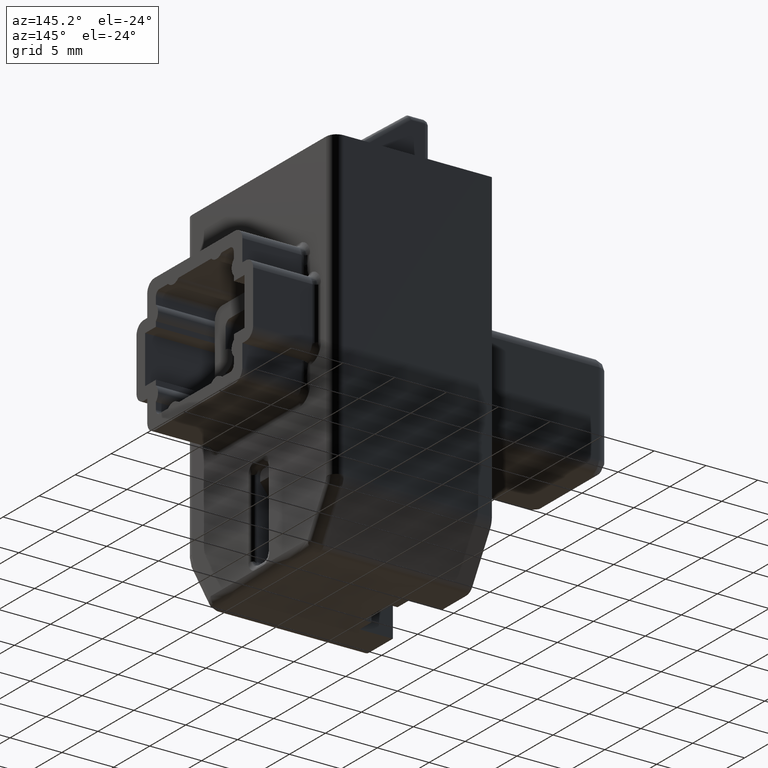
[diagram: clean part render]
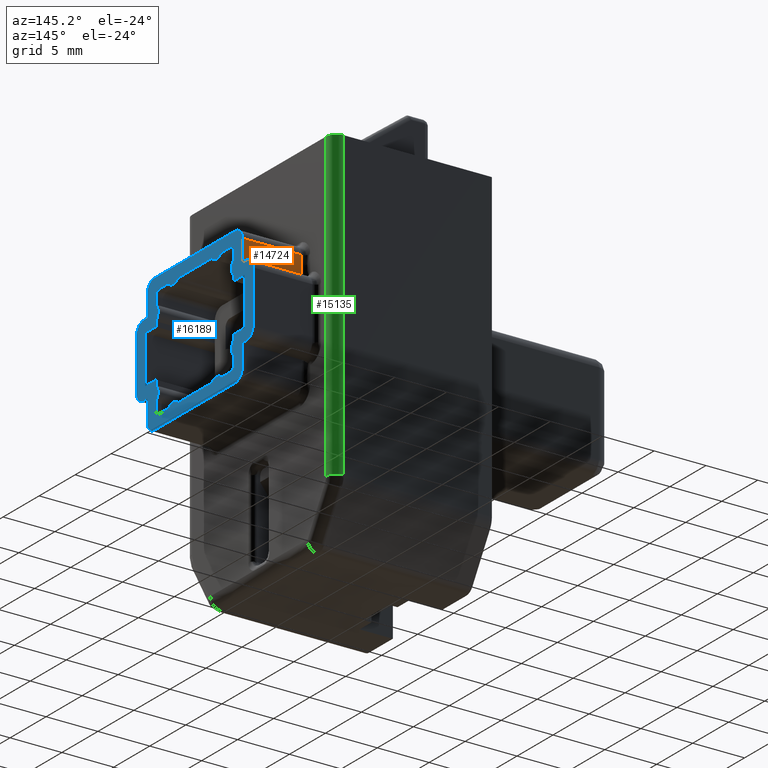
[diagram: same view with three faces highlighted in distinct colors, each labeled with its STEP entity id]
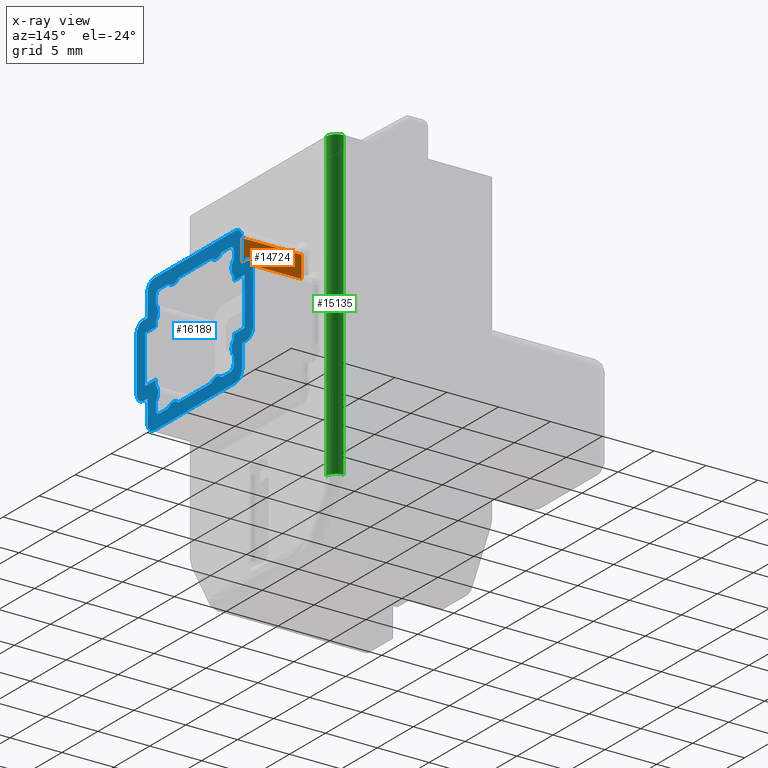
[diagram: x-ray of the same camera — body ghosted, the three highlighted faces saturated]
A machine part, auxiliary view with three faces highlighted in distinct colors.
The next image is the same camera in x-ray (body ghosted, the three faces saturated) — at least one of them is partly hidden behind the body in this view.
Their STEP definitions:

[orange] entity #14724 — the highlighted face is a freeform B-spline surface patch.
#11666=CARTESIAN_POINT('',(15.799998999999950,6.600002000000000,5.600000000000000));
#11667=VERTEX_POINT('',#11666);
#11774=CARTESIAN_POINT('',(15.799998999999950,6.600002000000000,3.499999000000000));
#11775=VERTEX_POINT('',#11774);
#11797=CARTESIAN_POINT('',(15.799998999999950,6.600002000000000,3.499999000000000));
#11798=CARTESIAN_POINT('',(15.799998999999950,6.600002000000000,5.600000000000000));
#11799=QUASI_UNIFORM_CURVE('',1,(#11797,#11798),.UNSPECIFIED.,.F.,.U.);
#11800=EDGE_CURVE('',#11775,#11667,#11799,.T.);
#14688=CARTESIAN_POINT('',(21.500000000000000,6.600002000000000,3.499999000000000));
#14689=VERTEX_POINT('',#14688);
#14690=CARTESIAN_POINT('',(21.500000000000000,6.600002000000000,3.499999000000000));
#14691=CARTESIAN_POINT('',(15.799998999999950,6.600002000000000,3.499999000000000));
#14692=QUASI_UNIFORM_CURVE('',1,(#14690,#14691),.UNSPECIFIED.,.F.,.U.);
#14693=EDGE_CURVE('',#14689,#11775,#14692,.T.);
#14703=CARTESIAN_POINT('',(15.515284175127780,6.600002000000000,3.395104001049501));
#14704=CARTESIAN_POINT('',(15.515284175127780,6.600002000000000,5.704894942624082));
#14705=CARTESIAN_POINT('',(21.784715181606028,6.600002000000000,3.395104001049501));
#14706=CARTESIAN_POINT('',(21.784715181606028,6.600002000000000,5.704894942624082));
#14707=B_SPLINE_SURFACE_WITH_KNOTS('',1,1,((#14703,#14705),(#14704,#14706)),.UNSPECIFIED.,.F.,.F.,.U.,(2,2),(2,2),(0.0,2.309790941574581),(0.0,6.269431006478254),.UNSPECIFIED.);
#14708=ORIENTED_EDGE('',*,*,#14693,.T.);
#14709=ORIENTED_EDGE('',*,*,#11800,.T.);
#14710=CARTESIAN_POINT('',(21.500000000000000,6.600002000000000,5.600000000000000));
#14711=VERTEX_POINT('',#14710);
#14712=CARTESIAN_POINT('',(21.500000000000000,6.600002000000000,5.600000000000000));
#14713=CARTESIAN_POINT('',(15.799998999999950,6.600002000000000,5.600000000000000));
#14714=QUASI_UNIFORM_CURVE('',1,(#14712,#14713),.UNSPECIFIED.,.F.,.U.);
#14715=EDGE_CURVE('',#14711,#11667,#14714,.T.);
#14716=ORIENTED_EDGE('',*,*,#14715,.F.);
#14717=CARTESIAN_POINT('',(21.500000000000000,6.600002000000000,5.600000000000000));
#14718=CARTESIAN_POINT('',(21.500000000000000,6.600002000000000,3.499999000000000));
#14719=QUASI_UNIFORM_CURVE('',1,(#14717,#14718),.UNSPECIFIED.,.F.,.U.);
#14720=EDGE_CURVE('',#14711,#14689,#14719,.T.);
#14721=ORIENTED_EDGE('',*,*,#14720,.T.);
#14722=EDGE_LOOP('',(#14708,#14709,#14716,#14721));
#14723=FACE_OUTER_BOUND('',#14722,.T.);
#14724=ADVANCED_FACE('',(#14723),#14707,.T.);

[blue] entity #16189 — the highlighted face is a freeform B-spline surface patch.
#13098=CARTESIAN_POINT('',(21.500000000000000,2.285857144918565,-5.400000012474091));
#13099=VERTEX_POINT('',#13098);
#13105=CARTESIAN_POINT('',(21.500000000000000,3.714142879516040,-5.400000037402380));
#13106=VERTEX_POINT('',#13105);
#13107=CARTESIAN_POINT('',(21.500000000000000,2.285857144918564,-5.400000012474090));
#13108=CARTESIAN_POINT('',(21.500000000000007,2.579915971703330,-5.099999992668052));
#13109=CARTESIAN_POINT('',(21.500000000000000,3.000000017453291,-5.099999999999901));
#13110=CARTESIAN_POINT('',(21.500000000000007,3.420084063203254,-5.100000007331750));
#13111=CARTESIAN_POINT('',(21.500000000000000,3.714142879516043,-5.400000037402377));
#13119=(BOUNDED_CURVE()B_SPLINE_CURVE(2,(#13107,#13108,#13109,#13110,#13111),.UNSPECIFIED.,.F.,.U.)B_SPLINE_CURVE_WITH_KNOTS((3,2,3),(0.0,0.500000000000000,1.0),.UNSPECIFIED.)CURVE()GEOMETRIC_REPRESENTATION_ITEM()RATIONAL_B_SPLINE_CURVE((1.0,0.921954438966934,1.0,0.921954438966934,1.0))REPRESENTATION_ITEM(''));
#13120=EDGE_CURVE('',#13099,#13106,#13119,.T.);
#13143=CARTESIAN_POINT('',(21.500000000000000,4.900002000000000,-5.399998999999890));
#13144=VERTEX_POINT('',#13143);
#13145=CARTESIAN_POINT('',(21.500000000000000,3.714142879516040,-5.400000037402380));
#13146=CARTESIAN_POINT('',(21.500000000000000,4.900002000000000,-5.399998999999890));
#13147=QUASI_UNIFORM_CURVE('',1,(#13145,#13146),.UNSPECIFIED.,.F.,.U.);
#13148=EDGE_CURVE('',#13106,#13144,#13147,.T.);
#13173=CARTESIAN_POINT('',(21.500000000000000,5.400002000000000,-4.899998956366660));
#13174=VERTEX_POINT('',#13173);
#13175=CARTESIAN_POINT('',(21.500000000000000,5.400001999999997,-4.899998956366660));
#13176=CARTESIAN_POINT('',(21.499999999999996,5.400002018073475,-5.107105750333083));
#13177=CARTESIAN_POINT('',(21.500000000000000,5.253555406019951,-5.253552375166486));
#13178=CARTESIAN_POINT('',(21.499999999999996,5.107108793966425,-5.399998999999889));
#13179=CARTESIAN_POINT('',(21.500000000000000,4.900002000000000,-5.399998999999890));
#13187=(BOUNDED_CURVE()B_SPLINE_CURVE(2,(#13175,#13176,#13177,#13178,#13179),.UNSPECIFIED.,.F.,.U.)B_SPLINE_CURVE_WITH_KNOTS((3,2,3),(0.0,0.500000000000000,1.0),.UNSPECIFIED.)CURVE()GEOMETRIC_REPRESENTATION_ITEM()RATIONAL_B_SPLINE_CURVE((1.0,0.923879524162429,1.0,0.923879524162429,1.0))REPRESENTATION_ITEM(''));
#13188=EDGE_CURVE('',#13174,#13144,#13187,.T.);
#13228=CARTESIAN_POINT('',(21.500000000000000,5.400002000000000,-4.214143999999799));
#13229=VERTEX_POINT('',#13228);
#13230=CARTESIAN_POINT('',(21.500000000000000,5.400002000000000,-4.899998956366660));
#13231=CARTESIAN_POINT('',(21.500000000000000,5.400002000000000,-4.214143999999799));
#13232=QUASI_UNIFORM_CURVE('',1,(#13230,#13231),.UNSPECIFIED.,.F.,.U.);
#13233=EDGE_CURVE('',#13174,#13229,#13232,.T.);
#13275=CARTESIAN_POINT('',(21.500000000000000,5.399999000010039,-2.785857157135870));
#13276=VERTEX_POINT('',#13275);
#13277=CARTESIAN_POINT('',(21.500000000000000,5.400002000000000,-4.214143999999799));
#13278=CARTESIAN_POINT('',(21.500000000000000,5.100000328120239,-3.920085647491316));
#13279=CARTESIAN_POINT('',(21.500000000000000,5.099999445769704,-3.500001021432404));
#13280=CARTESIAN_POINT('',(21.500000000000000,5.099998563419170,-3.079916395373492));
#13281=CARTESIAN_POINT('',(21.500000000000000,5.399999000010039,-2.785857157135870));
#13289=(BOUNDED_CURVE()B_SPLINE_CURVE(2,(#13277,#13278,#13279,#13280,#13281),.UNSPECIFIED.,.F.,.U.)B_SPLINE_CURVE_WITH_KNOTS((3,2,3),(0.0,0.500000000000000,1.0),.UNSPECIFIED.)CURVE()GEOMETRIC_REPRESENTATION_ITEM()RATIONAL_B_SPLINE_CURVE((1.0,0.921954159859469,1.0,0.921954159859469,1.0))REPRESENTATION_ITEM(''));
#13290=EDGE_CURVE('',#13229,#13276,#13289,.T.);
#13313=CARTESIAN_POINT('',(21.500000000000000,5.400002000000000,-2.299998999999895));
#13314=VERTEX_POINT('',#13313);
#13315=CARTESIAN_POINT('',(21.500000000000000,5.399999000010039,-2.785857157135870));
#13316=CARTESIAN_POINT('',(21.500000000000000,5.400002000000000,-2.299998999999895));
#13317=QUASI_UNIFORM_CURVE('',1,(#13315,#13316),.UNSPECIFIED.,.F.,.U.);
#13318=EDGE_CURVE('',#13276,#13314,#13317,.T.);
#13341=CARTESIAN_POINT('',(21.500000000000000,6.900002000000000,-2.299998999999895));
#13342=VERTEX_POINT('',#13341);
#13343=CARTESIAN_POINT('',(21.500000000000000,5.400002000000000,-2.299998999999895));
#13344=CARTESIAN_POINT('',(21.500000000000000,6.900002000000000,-2.299998999999895));
#13345=QUASI_UNIFORM_CURVE('',1,(#13343,#13344),.UNSPECIFIED.,.F.,.U.);
#13346=EDGE_CURVE('',#13314,#13342,#13345,.T.);
#13369=CARTESIAN_POINT('',(21.500000000000000,6.900002000000000,2.300000000000190));
#13370=VERTEX_POINT('',#13369);
#13371=CARTESIAN_POINT('',(21.500000000000000,6.900002000000000,-2.299998999999895));
#13372=CARTESIAN_POINT('',(21.500000000000000,6.900002000000000,2.300000000000190));
#13373=QUASI_UNIFORM_CURVE('',1,(#13371,#13372),.UNSPECIFIED.,.F.,.U.);
#13374=EDGE_CURVE('',#13342,#13370,#13373,.T.);
#13397=CARTESIAN_POINT('',(21.500000000000000,5.400002000000000,2.300000000000190));
#13398=VERTEX_POINT('',#13397);
#13399=CARTESIAN_POINT('',(21.500000000000000,6.900002000000000,2.300000000000190));
#13400=CARTESIAN_POINT('',(21.500000000000000,5.400002000000000,2.300000000000190));
#13401=QUASI_UNIFORM_CURVE('',1,(#13399,#13400),.UNSPECIFIED.,.F.,.U.);
#13402=EDGE_CURVE('',#13370,#13398,#13401,.T.);
#13425=CARTESIAN_POINT('',(21.500000000000000,5.400002000000000,2.785857000000115));
#13426=VERTEX_POINT('',#13425);
#13427=CARTESIAN_POINT('',(21.500000000000000,5.400002000000000,2.300000000000190));
#13428=CARTESIAN_POINT('',(21.500000000000000,5.400002000000000,2.785857000000115));
#13429=QUASI_UNIFORM_CURVE('',1,(#13427,#13428),.UNSPECIFIED.,.F.,.U.);
#13430=EDGE_CURVE('',#13398,#13426,#13429,.T.);
#13472=CARTESIAN_POINT('',(21.500000000000000,5.400002000000000,4.214145783430115));
#13473=VERTEX_POINT('',#13472);
#13474=CARTESIAN_POINT('',(21.500000000000000,5.400002000000000,2.785857000000115));
#13475=CARTESIAN_POINT('',(21.499999999999996,5.099999695719443,3.079916178265144));
#13476=CARTESIAN_POINT('',(21.500000000000000,5.099999695719444,3.500001683976862));
#13477=CARTESIAN_POINT('',(21.499999999999996,5.099999695719443,3.920087189688581));
#13478=CARTESIAN_POINT('',(21.500000000000000,5.400002000000000,4.214145783430115));
#13486=(BOUNDED_CURVE()B_SPLINE_CURVE(2,(#13474,#13475,#13476,#13477,#13478),.UNSPECIFIED.,.F.,.U.)B_SPLINE_CURVE_WITH_KNOTS((3,2,3),(0.0,0.500000000000000,1.0),.UNSPECIFIED.)CURVE()GEOMETRIC_REPRESENTATION_ITEM()RATIONAL_B_SPLINE_CURVE((1.0,0.921953820893243,1.0,0.921953820893243,1.0))REPRESENTATION_ITEM(''));
#13487=EDGE_CURVE('',#13426,#13473,#13486,.T.);
#13510=CARTESIAN_POINT('',(21.500000000000000,5.400002000000000,4.900000000000000));
#13511=VERTEX_POINT('',#13510);
#13512=CARTESIAN_POINT('',(21.500000000000000,5.400002000000000,4.214145783430115));
#13513=CARTESIAN_POINT('',(21.500000000000000,5.400002000000000,4.900000000000000));
#13514=QUASI_UNIFORM_CURVE('',1,(#13512,#13513),.UNSPECIFIED.,.F.,.U.);
#13515=EDGE_CURVE('',#13473,#13511,#13514,.T.);
#13540=CARTESIAN_POINT('',(21.500000000000000,4.900001991273350,5.400000000000000));
#13541=VERTEX_POINT('',#13540);
#13542=CARTESIAN_POINT('',(21.500000000000000,4.900001991273350,5.400000000000000));
#13543=CARTESIAN_POINT('',(21.500000000000004,5.107108775015875,5.400000003614697));
#13544=CARTESIAN_POINT('',(21.500000000000000,5.253555387507937,5.253553393678610));
#13545=CARTESIAN_POINT('',(21.500000000000004,5.400002000000000,5.107106783742524));
#13546=CARTESIAN_POINT('',(21.500000000000000,5.400001999999999,4.900000000000000));
#13554=(BOUNDED_CURVE()B_SPLINE_CURVE(2,(#13542,#13543,#13544,#13545,#13546),.UNSPECIFIED.,.F.,.U.)B_SPLINE_CURVE_WITH_KNOTS((3,2,3),(0.0,0.500000000000000,1.0),.UNSPECIFIED.)CURVE()GEOMETRIC_REPRESENTATION_ITEM()RATIONAL_B_SPLINE_CURVE((1.0,0.923879530841515,1.0,0.923879530841515,1.0))REPRESENTATION_ITEM(''));
#13555=EDGE_CURVE('',#13541,#13511,#13554,.T.);
#13595=CARTESIAN_POINT('',(21.500000000000000,3.714141999999895,5.400000000000100));
#13596=VERTEX_POINT('',#13595);
#13597=CARTESIAN_POINT('',(21.500000000000000,4.900001991273350,5.400000000000000));
#13598=CARTESIAN_POINT('',(21.500000000000000,3.714141999999895,5.400000000000100));
#13599=QUASI_UNIFORM_CURVE('',1,(#13597,#13598),.UNSPECIFIED.,.F.,.U.);
#13600=EDGE_CURVE('',#13541,#13596,#13599,.T.);
#13642=CARTESIAN_POINT('',(21.500000000000000,2.285858137343160,5.400000000000100));
#13643=VERTEX_POINT('',#13642);
#13644=CARTESIAN_POINT('',(21.500000000000000,3.714141999999895,5.400000000000100));
#13645=CARTESIAN_POINT('',(21.500000000000007,3.420083277860569,5.100001020193569));
#13646=CARTESIAN_POINT('',(21.500000000000000,3.000000048070133,5.100001000000111));
#13647=CARTESIAN_POINT('',(21.500000000000007,2.579916818279699,5.100000979806655));
#13648=CARTESIAN_POINT('',(21.500000000000000,2.285858137343158,5.400000000000098));
#13656=(BOUNDED_CURVE()B_SPLINE_CURVE(2,(#13644,#13645,#13646,#13647,#13648),.UNSPECIFIED.,.F.,.U.)B_SPLINE_CURVE_WITH_KNOTS((3,2,3),(0.0,0.500000000000000,1.0),.UNSPECIFIED.)CURVE()GEOMETRIC_REPRESENTATION_ITEM()RATIONAL_B_SPLINE_CURVE((1.0,0.921954707583598,1.0,0.921954707583598,1.0))REPRESENTATION_ITEM(''));
#13657=EDGE_CURVE('',#13596,#13643,#13656,.T.);
#13700=CARTESIAN_POINT('',(21.500000000000000,-2.285858000000105,5.400000000000100));
#13701=VERTEX_POINT('',#13700);
#13707=CARTESIAN_POINT('',(21.500000000000000,-3.714141862656840,5.400000000000100));
#13708=VERTEX_POINT('',#13707);
#13709=CARTESIAN_POINT('',(21.500000000000000,-2.285858000000105,5.400000000000100));
#13710=CARTESIAN_POINT('',(21.500000000000007,-2.579916722139431,5.100001020193569));
#13711=CARTESIAN_POINT('',(21.500000000000000,-2.999999951929866,5.100001000000111));
#13712=CARTESIAN_POINT('',(21.500000000000007,-3.420083181720302,5.100000979806655));
#13713=CARTESIAN_POINT('',(21.500000000000000,-3.714141862656841,5.400000000000097));
#13721=(BOUNDED_CURVE()B_SPLINE_CURVE(2,(#13709,#13710,#13711,#13712,#13713),.UNSPECIFIED.,.F.,.U.)B_SPLINE_CURVE_WITH_KNOTS((3,2,3),(0.0,0.500000000000000,1.0),.UNSPECIFIED.)CURVE()GEOMETRIC_REPRESENTATION_ITEM()RATIONAL_B_SPLINE_CURVE((1.0,0.921954707583598,1.0,0.921954707583598,1.0))REPRESENTATION_ITEM(''));
#13722=EDGE_CURVE('',#13701,#13708,#13721,.T.);
#13745=CARTESIAN_POINT('',(21.500000000000000,-4.900001000000001,5.400000000000100));
#13746=VERTEX_POINT('',#13745);
#13747=CARTESIAN_POINT('',(21.500000000000000,-3.714141862656840,5.400000000000100));
#13748=CARTESIAN_POINT('',(21.500000000000000,-4.900001000000001,5.400000000000100));
#13749=QUASI_UNIFORM_CURVE('',1,(#13747,#13748),.UNSPECIFIED.,.F.,.U.);
#13750=EDGE_CURVE('',#13708,#13746,#13749,.T.);
#13775=CARTESIAN_POINT('',(21.500000000000000,-5.400001000000000,4.900000000000000));
#13776=VERTEX_POINT('',#13775);
#13777=CARTESIAN_POINT('',(21.500000000000000,-5.400001000000000,4.900000000000000));
#13778=CARTESIAN_POINT('',(21.499999999999996,-5.400001000000001,5.400000000000000));
#13779=CARTESIAN_POINT('',(21.500000000000000,-4.900001000000001,5.400000000000100));
#13787=(BOUNDED_CURVE()B_SPLINE_CURVE(2,(#13777,#13778,#13779),.UNSPECIFIED.,.F.,.U.)CURVE()GEOMETRIC_REPRESENTATION_ITEM()QUASI_UNIFORM_CURVE()RATIONAL_B_SPLINE_CURVE((1.0,0.707106781186548,1.0))REPRESENTATION_ITEM(''));
#13788=EDGE_CURVE('',#13776,#13746,#13787,.T.);
#13826=CARTESIAN_POINT('',(21.500000000000000,-5.400001000000000,4.214143000000215));
#13827=VERTEX_POINT('',#13826);
#13828=CARTESIAN_POINT('',(21.500000000000000,-5.400001000000000,4.900000000000000));
#13829=CARTESIAN_POINT('',(21.500000000000000,-5.400001000000000,4.214143000000215));
#13830=QUASI_UNIFORM_CURVE('',1,(#13828,#13829),.UNSPECIFIED.,.F.,.U.);
#13831=EDGE_CURVE('',#13776,#13827,#13830,.T.);
#13873=CARTESIAN_POINT('',(21.500000000000000,-5.399998024938331,2.785857132701275));
#13874=VERTEX_POINT('',#13873);
#13875=CARTESIAN_POINT('',(21.500000000000000,-5.400001000000000,4.214143000000215));
#13876=CARTESIAN_POINT('',(21.500000000000000,-5.099999570738064,3.920084679421910));
#13877=CARTESIAN_POINT('',(21.500000000000000,-5.099998695719506,3.500000398978828));
#13878=CARTESIAN_POINT('',(21.500000000000000,-5.099997820700947,3.079916118535746));
#13879=CARTESIAN_POINT('',(21.500000000000000,-5.399998024938331,2.785857132701275));
#13887=(BOUNDED_CURVE()B_SPLINE_CURVE(2,(#13875,#13876,#13877,#13878,#13879),.UNSPECIFIED.,.F.,.U.)B_SPLINE_CURVE_WITH_KNOTS((3,2,3),(0.0,0.500000000000000,1.0),.UNSPECIFIED.)CURVE()GEOMETRIC_REPRESENTATION_ITEM()RATIONAL_B_SPLINE_CURVE((1.0,0.921954224256866,1.0,0.921954224256866,1.0))REPRESENTATION_ITEM(''));
#13888=EDGE_CURVE('',#13827,#13874,#13887,.T.);
#13911=CARTESIAN_POINT('',(21.500000000000000,-5.400001000000000,2.300000000000190));
#13912=VERTEX_POINT('',#13911);
#13913=CARTESIAN_POINT('',(21.500000000000000,-5.399998024938331,2.785857132701275));
#13914=CARTESIAN_POINT('',(21.500000000000000,-5.400001000000000,2.300000000000190));
#13915=QUASI_UNIFORM_CURVE('',1,(#13913,#13914),.UNSPECIFIED.,.F.,.U.);
#13916=EDGE_CURVE('',#13874,#13912,#13915,.T.);
#13939=CARTESIAN_POINT('',(21.500000000000000,-6.900001000000001,2.300000000000190));
#13940=VERTEX_POINT('',#13939);
#13941=CARTESIAN_POINT('',(21.500000000000000,-5.400001000000000,2.300000000000190));
#13942=CARTESIAN_POINT('',(21.500000000000000,-6.900001000000001,2.300000000000190));
#13943=QUASI_UNIFORM_CURVE('',1,(#13941,#13942),.UNSPECIFIED.,.F.,.U.);
#13944=EDGE_CURVE('',#13912,#13940,#13943,.T.);
#13967=CARTESIAN_POINT('',(21.500000000000000,-6.900001000000001,-2.299998999999890));
#13968=VERTEX_POINT('',#13967);
#13969=CARTESIAN_POINT('',(21.500000000000000,-6.900001000000001,2.300000000000190));
#13970=CARTESIAN_POINT('',(21.500000000000000,-6.900001000000001,-2.299998999999890));
#13971=QUASI_UNIFORM_CURVE('',1,(#13969,#13970),.UNSPECIFIED.,.F.,.U.);
#13972=EDGE_CURVE('',#13940,#13968,#13971,.T.);
#13995=CARTESIAN_POINT('',(21.500000000000000,-5.400001000000000,-2.299998999999890));
#13996=VERTEX_POINT('',#13995);
#13997=CARTESIAN_POINT('',(21.500000000000000,-6.900001000000001,-2.299998999999890));
#13998=CARTESIAN_POINT('',(21.500000000000000,-5.400001000000000,-2.299998999999890));
#13999=QUASI_UNIFORM_CURVE('',1,(#13997,#13998),.UNSPECIFIED.,.F.,.U.);
#14000=EDGE_CURVE('',#13968,#13996,#13999,.T.);
#14023=CARTESIAN_POINT('',(21.500000000000000,-5.400001000000000,-2.785855999999790));
#14024=VERTEX_POINT('',#14023);
#14025=CARTESIAN_POINT('',(21.500000000000000,-5.400001000000000,-2.299998999999890));
#14026=CARTESIAN_POINT('',(21.500000000000000,-5.400001000000000,-2.785855999999790));
#14027=QUASI_UNIFORM_CURVE('',1,(#14025,#14026),.UNSPECIFIED.,.F.,.U.);
#14028=EDGE_CURVE('',#13996,#14024,#14027,.T.);
#14070=CARTESIAN_POINT('',(21.500000000000000,-5.399998024938331,-4.214142867298730));
#14071=VERTEX_POINT('',#14070);
#14072=CARTESIAN_POINT('',(21.500000000000000,-5.400001000000000,-2.785855999999790));
#14073=CARTESIAN_POINT('',(21.499999999999996,-5.099999320788268,-3.079914359694922));
#14074=CARTESIAN_POINT('',(21.500000000000000,-5.099998445769580,-3.499998996020634));
#14075=CARTESIAN_POINT('',(21.499999999999996,-5.099997570750892,-3.920083632346347));
#14076=CARTESIAN_POINT('',(21.500000000000000,-5.399998024938331,-4.214142867298730));
#14084=(BOUNDED_CURVE()B_SPLINE_CURVE(2,(#14072,#14073,#14074,#14075,#14076),.UNSPECIFIED.,.F.,.U.)B_SPLINE_CURVE_WITH_KNOTS((3,2,3),(0.0,0.500000000000000,1.0),.UNSPECIFIED.)CURVE()GEOMETRIC_REPRESENTATION_ITEM()RATIONAL_B_SPLINE_CURVE((1.0,0.921954156479620,1.0,0.921954156479620,1.0))REPRESENTATION_ITEM(''));
#14085=EDGE_CURVE('',#14024,#14071,#14084,.T.);
#14108=CARTESIAN_POINT('',(21.500000000000000,-5.400001000000000,-4.899998999999890));
#14109=VERTEX_POINT('',#14108);
#14110=CARTESIAN_POINT('',(21.500000000000000,-5.399998024938331,-4.214142867298730));
#14111=CARTESIAN_POINT('',(21.500000000000000,-5.400001000000000,-4.899998999999890));
#14112=QUASI_UNIFORM_CURVE('',1,(#14110,#14111),.UNSPECIFIED.,.F.,.U.);
#14113=EDGE_CURVE('',#14071,#14109,#14112,.T.);
#14138=CARTESIAN_POINT('',(21.500000000000000,-4.900000973820060,-5.399998999999890));
#14139=VERTEX_POINT('',#14138);
#14140=CARTESIAN_POINT('',(21.500000000000000,-4.900000973820060,-5.399998999999890));
#14141=CARTESIAN_POINT('',(21.500000000000000,-5.107107762674534,-5.399999010843976));
#14142=CARTESIAN_POINT('',(21.500000000000000,-5.253554381337267,-5.253552399849170));
#14143=CARTESIAN_POINT('',(21.500000000000000,-5.400001000000000,-5.107105788854365));
#14144=CARTESIAN_POINT('',(21.500000000000000,-5.400001000000000,-4.899998999999890));
#14152=(BOUNDED_CURVE()B_SPLINE_CURVE(2,(#14140,#14141,#14142,#14143,#14144),.UNSPECIFIED.,.F.,.U.)B_SPLINE_CURVE_WITH_KNOTS((3,2,3),(0.0,0.500000000000000,1.0),.UNSPECIFIED.)CURVE()GEOMETRIC_REPRESENTATION_ITEM()RATIONAL_B_SPLINE_CURVE((1.0,0.923879527501972,1.0,0.923879527501972,1.0))REPRESENTATION_ITEM(''));
#14153=EDGE_CURVE('',#14139,#14109,#14152,.T.);
#14193=CARTESIAN_POINT('',(21.500000000000000,-3.714141929955275,-5.399999068657840));
#14194=VERTEX_POINT('',#14193);
#14195=CARTESIAN_POINT('',(21.500000000000000,-4.900000973820060,-5.399998999999890));
#14196=CARTESIAN_POINT('',(21.500000000000000,-3.714141929955275,-5.399999068657840));
#14197=QUASI_UNIFORM_CURVE('',1,(#14195,#14196),.UNSPECIFIED.,.F.,.U.);
#14198=EDGE_CURVE('',#14139,#14194,#14197,.T.);
#14240=CARTESIAN_POINT('',(21.500000000000000,-2.285857120483960,-5.400000037402380));
#14241=VERTEX_POINT('',#14240);
#14242=CARTESIAN_POINT('',(21.500000000000000,-3.714141929955276,-5.399999068657839));
#14243=CARTESIAN_POINT('',(21.499999999999996,-3.420082978784441,-5.099999715075342));
#14244=CARTESIAN_POINT('',(21.500000000000000,-2.999999321742743,-5.100000000000130));
#14245=CARTESIAN_POINT('',(21.499999999999996,-2.579915664701045,-5.100000284924920));
#14246=CARTESIAN_POINT('',(21.500000000000000,-2.285857120483957,-5.400000037402377));
#14254=(BOUNDED_CURVE()B_SPLINE_CURVE(2,(#14242,#14243,#14244,#14245,#14246),.UNSPECIFIED.,.F.,.U.)B_SPLINE_CURVE_WITH_KNOTS((3,2,3),(0.0,0.500000000000000,1.0),.UNSPECIFIED.)CURVE()GEOMETRIC_REPRESENTATION_ITEM()RATIONAL_B_SPLINE_CURVE((1.0,0.921954566931027,1.0,0.921954566931027,1.0))REPRESENTATION_ITEM(''));
#14255=EDGE_CURVE('',#14194,#14241,#14254,.T.);
#14270=CARTESIAN_POINT('',(21.500000000000000,-6.600001000000111,3.499999000000000));
#14271=VERTEX_POINT('',#14270);
#14278=CARTESIAN_POINT('',(21.500000000000000,-7.100000000000001,3.499999000000000));
#14279=VERTEX_POINT('',#14278);
#14285=CARTESIAN_POINT('',(21.500000000000000,-7.100000000000001,3.499999000000000));
#14286=CARTESIAN_POINT('',(21.500000000000000,-6.600001000000111,3.499999000000000));
#14287=QUASI_UNIFORM_CURVE('',1,(#14285,#14286),.UNSPECIFIED.,.F.,.U.);
#14288=EDGE_CURVE('',#14279,#14271,#14287,.T.);
#14309=CARTESIAN_POINT('',(21.500000000000000,-8.100000000000000,2.499999000000000));
#14310=VERTEX_POINT('',#14309);
#14316=CARTESIAN_POINT('',(21.500000000000000,-7.100000000000001,3.499999000000000));
#14317=CARTESIAN_POINT('',(21.499999999999996,-8.100000000000000,3.499999000000001));
#14318=CARTESIAN_POINT('',(21.500000000000000,-8.100000000000000,2.499999000000000));
#14326=(BOUNDED_CURVE()B_SPLINE_CURVE(2,(#14316,#14317,#14318),.UNSPECIFIED.,.F.,.U.)CURVE()GEOMETRIC_REPRESENTATION_ITEM()QUASI_UNIFORM_CURVE()RATIONAL_B_SPLINE_CURVE((1.0,0.707106781186548,1.0))REPRESENTATION_ITEM(''));
#14327=EDGE_CURVE('',#14279,#14310,#14326,.T.);
#14339=CARTESIAN_POINT('',(21.500000000000000,-8.100000000000000,-2.499999000000000));
#14340=VERTEX_POINT('',#14339);
#14346=CARTESIAN_POINT('',(21.500000000000000,-8.100000000000000,-2.499999000000000));
#14347=CARTESIAN_POINT('',(21.500000000000000,-8.100000000000000,2.499999000000000));
#14348=QUASI_UNIFORM_CURVE('',1,(#14346,#14347),.UNSPECIFIED.,.F.,.U.);
#14349=EDGE_CURVE('',#14340,#14310,#14348,.T.);
#14370=CARTESIAN_POINT('',(21.500000000000000,-7.100000000000001,-3.499999000000000));
#14371=VERTEX_POINT('',#14370);
#14377=CARTESIAN_POINT('',(21.500000000000000,-8.100000000000000,-2.499999000000000));
#14378=CARTESIAN_POINT('',(21.499999999999996,-8.100000000000000,-3.499999000000001));
#14379=CARTESIAN_POINT('',(21.500000000000000,-7.100000000000001,-3.499999000000000));
#14387=(BOUNDED_CURVE()B_SPLINE_CURVE(2,(#14377,#14378,#14379),.UNSPECIFIED.,.F.,.U.)CURVE()GEOMETRIC_REPRESENTATION_ITEM()QUASI_UNIFORM_CURVE()RATIONAL_B_SPLINE_CURVE((1.0,0.707106781186548,1.0))REPRESENTATION_ITEM(''));
#14388=EDGE_CURVE('',#14340,#14371,#14387,.T.);
#14400=CARTESIAN_POINT('',(21.500000000000000,-6.600001000000111,-3.499999000000000));
#14401=VERTEX_POINT('',#14400);
#14407=CARTESIAN_POINT('',(21.500000000000000,-6.600001000000111,-3.499999000000000));
#14408=CARTESIAN_POINT('',(21.500000000000000,-7.100000000000001,-3.499999000000000));
#14409=QUASI_UNIFORM_CURVE('',1,(#14407,#14408),.UNSPECIFIED.,.F.,.U.);
#14410=EDGE_CURVE('',#14401,#14371,#14409,.T.);
#14422=CARTESIAN_POINT('',(21.500000000000000,-6.600001000000111,-5.599999999999920));
#14423=VERTEX_POINT('',#14422);
#14429=CARTESIAN_POINT('',(21.500000000000000,-6.600001000000111,-5.599999999999920));
#14430=CARTESIAN_POINT('',(21.500000000000000,-6.600001000000111,-3.499999000000000));
#14431=QUASI_UNIFORM_CURVE('',1,(#14429,#14430),.UNSPECIFIED.,.F.,.U.);
#14432=EDGE_CURVE('',#14423,#14401,#14431,.T.);
#14453=CARTESIAN_POINT('',(21.500000000000000,-5.600001000000111,-6.599999999999921));
#14454=VERTEX_POINT('',#14453);
#14460=CARTESIAN_POINT('',(21.500000000000000,-6.600001000000111,-5.599999999999920));
#14461=CARTESIAN_POINT('',(21.499999999999996,-6.600001000000112,-6.599999999999922));
#14462=CARTESIAN_POINT('',(21.500000000000000,-5.600001000000111,-6.599999999999921));
#14470=(BOUNDED_CURVE()B_SPLINE_CURVE(2,(#14460,#14461,#14462),.UNSPECIFIED.,.F.,.U.)CURVE()GEOMETRIC_REPRESENTATION_ITEM()QUASI_UNIFORM_CURVE()RATIONAL_B_SPLINE_CURVE((1.0,0.707106781186548,1.0))REPRESENTATION_ITEM(''));
#14471=EDGE_CURVE('',#14423,#14454,#14470,.T.);
#14483=CARTESIAN_POINT('',(21.500000000000000,5.601416302495380,-6.599998999873640));
#14484=VERTEX_POINT('',#14483);
#14490=CARTESIAN_POINT('',(21.500000000000000,5.601416302495380,-6.599998999873640));
#14491=CARTESIAN_POINT('',(21.500000000000000,-5.600001000000111,-6.599999999999921));
#14492=QUASI_UNIFORM_CURVE('',1,(#14490,#14491),.UNSPECIFIED.,.F.,.U.);
#14493=EDGE_CURVE('',#14484,#14454,#14492,.T.);
#14514=CARTESIAN_POINT('',(21.500000000000000,6.600002000000000,-5.599999999999920));
#14515=VERTEX_POINT('',#14514);
#14521=CARTESIAN_POINT('',(21.500000000000000,5.601416302495380,-6.599998999873646));
#14522=CARTESIAN_POINT('',(21.499999999999996,6.600002000000000,-6.598586696217331));
#14523=CARTESIAN_POINT('',(21.500000000000000,6.600002000000000,-5.599999999999920));
#14531=(BOUNDED_CURVE()B_SPLINE_CURVE(2,(#14521,#14522,#14523),.UNSPECIFIED.,.F.,.U.)CURVE()GEOMETRIC_REPRESENTATION_ITEM()QUASI_UNIFORM_CURVE()RATIONAL_B_SPLINE_CURVE((1.0,0.707606635955098,1.0))REPRESENTATION_ITEM(''));
#14532=EDGE_CURVE('',#14484,#14515,#14531,.T.);
#14544=CARTESIAN_POINT('',(21.500000000000000,6.600002000000000,-3.499999000000000));
#14545=VERTEX_POINT('',#14544);
#14551=CARTESIAN_POINT('',(21.500000000000000,6.600002000000000,-3.499999000000000));
#14552=CARTESIAN_POINT('',(21.500000000000000,6.600002000000000,-5.599999999999920));
#14553=QUASI_UNIFORM_CURVE('',1,(#14551,#14552),.UNSPECIFIED.,.F.,.U.);
#14554=EDGE_CURVE('',#14545,#14515,#14553,.T.);
#14566=CARTESIAN_POINT('',(21.500000000000000,7.100000000000001,-3.499999000000000));
#14567=VERTEX_POINT('',#14566);
#14573=CARTESIAN_POINT('',(21.500000000000000,7.100000000000001,-3.499999000000000));
#14574=CARTESIAN_POINT('',(21.500000000000000,6.600002000000000,-3.499999000000000));
#14575=QUASI_UNIFORM_CURVE('',1,(#14573,#14574),.UNSPECIFIED.,.F.,.U.);
#14576=EDGE_CURVE('',#14567,#14545,#14575,.T.);
#14597=CARTESIAN_POINT('',(21.500000000000000,8.100000000000000,-2.499999000000000));
#14598=VERTEX_POINT('',#14597);
#14604=CARTESIAN_POINT('',(21.500000000000000,7.100000000000001,-3.499999000000000));
#14605=CARTESIAN_POINT('',(21.499999999999996,8.100000000000000,-3.499999000000001));
#14606=CARTESIAN_POINT('',(21.500000000000000,8.100000000000000,-2.499999000000000));
#14614=(BOUNDED_CURVE()B_SPLINE_CURVE(2,(#14604,#14605,#14606),.UNSPECIFIED.,.F.,.U.)CURVE()GEOMETRIC_REPRESENTATION_ITEM()QUASI_UNIFORM_CURVE()RATIONAL_B_SPLINE_CURVE((1.0,0.707106781186548,1.0))REPRESENTATION_ITEM(''));
#14615=EDGE_CURVE('',#14567,#14598,#14614,.T.);
#14627=CARTESIAN_POINT('',(21.500000000000000,8.100000000000000,2.499999000000000));
#14628=VERTEX_POINT('',#14627);
#14634=CARTESIAN_POINT('',(21.500000000000000,8.100000000000000,2.499999000000000));
#14635=CARTESIAN_POINT('',(21.500000000000000,8.100000000000000,-2.499999000000000));
#14636=QUASI_UNIFORM_CURVE('',1,(#14634,#14635),.UNSPECIFIED.,.F.,.U.);
#14637=EDGE_CURVE('',#14628,#14598,#14636,.T.);
#14658=CARTESIAN_POINT('',(21.500000000000000,7.100000000000001,3.499999000000000));
#14659=VERTEX_POINT('',#14658);
#14665=CARTESIAN_POINT('',(21.500000000000000,8.100000000000000,2.499999000000000));
#14666=CARTESIAN_POINT('',(21.499999999999996,8.100000000000000,3.499999000000001));
#14667=CARTESIAN_POINT('',(21.500000000000000,7.100000000000001,3.499999000000000));
#14675=(BOUNDED_CURVE()B_SPLINE_CURVE(2,(#14665,#14666,#14667),.UNSPECIFIED.,.F.,.U.)CURVE()GEOMETRIC_REPRESENTATION_ITEM()QUASI_UNIFORM_CURVE()RATIONAL_B_SPLINE_CURVE((1.0,0.707106781186548,1.0))REPRESENTATION_ITEM(''));
#14676=EDGE_CURVE('',#14628,#14659,#14675,.T.);
#14688=CARTESIAN_POINT('',(21.500000000000000,6.600002000000000,3.499999000000000));
#14689=VERTEX_POINT('',#14688);
#14695=CARTESIAN_POINT('',(21.500000000000000,6.600002000000000,3.499999000000000));
#14696=CARTESIAN_POINT('',(21.500000000000000,7.100000000000001,3.499999000000000));
#14697=QUASI_UNIFORM_CURVE('',1,(#14695,#14696),.UNSPECIFIED.,.F.,.U.);
#14698=EDGE_CURVE('',#14689,#14659,#14697,.T.);
#14710=CARTESIAN_POINT('',(21.500000000000000,6.600002000000000,5.600000000000000));
#14711=VERTEX_POINT('',#14710);
#14717=CARTESIAN_POINT('',(21.500000000000000,6.600002000000000,5.600000000000000));
#14718=CARTESIAN_POINT('',(21.500000000000000,6.600002000000000,3.499999000000000));
#14719=QUASI_UNIFORM_CURVE('',1,(#14717,#14718),.UNSPECIFIED.,.F.,.U.);
#14720=EDGE_CURVE('',#14711,#14689,#14719,.T.);
#14741=CARTESIAN_POINT('',(21.500000000000000,5.600002000000000,6.599999000000130));
#14742=VERTEX_POINT('',#14741);
#14748=CARTESIAN_POINT('',(21.500000000000000,6.600002000000000,5.600000000000000));
#14749=CARTESIAN_POINT('',(21.499999999999996,6.600002000000002,6.599999999999999));
#14750=CARTESIAN_POINT('',(21.500000000000000,5.600002000000000,6.599999000000130));
#14758=(BOUNDED_CURVE()B_SPLINE_CURVE(2,(#14748,#14749,#14750),.UNSPECIFIED.,.F.,.U.)CURVE()GEOMETRIC_REPRESENTATION_ITEM()QUASI_UNIFORM_CURVE()RATIONAL_B_SPLINE_CURVE((1.0,0.707106781186548,1.0))REPRESENTATION_ITEM(''));
#14759=EDGE_CURVE('',#14711,#14742,#14758,.T.);
#14771=CARTESIAN_POINT('',(21.500000000000000,-5.600001000000111,6.599999000000130));
#14772=VERTEX_POINT('',#14771);
#14778=CARTESIAN_POINT('',(21.500000000000000,-5.600001000000111,6.599999000000130));
#14779=CARTESIAN_POINT('',(21.500000000000000,5.600002000000000,6.599999000000130));
#14780=QUASI_UNIFORM_CURVE('',1,(#14778,#14779),.UNSPECIFIED.,.F.,.U.);
#14781=EDGE_CURVE('',#14772,#14742,#14780,.T.);
#14802=CARTESIAN_POINT('',(21.500000000000000,-6.600001000000111,5.599999000000130));
#14803=VERTEX_POINT('',#14802);
#14809=CARTESIAN_POINT('',(21.500000000000000,-5.600001000000111,6.599999000000130));
#14810=CARTESIAN_POINT('',(21.499999999999996,-6.600001000000112,6.599999000000130));
#14811=CARTESIAN_POINT('',(21.500000000000000,-6.600001000000111,5.599999000000130));
#14819=(BOUNDED_CURVE()B_SPLINE_CURVE(2,(#14809,#14810,#14811),.UNSPECIFIED.,.F.,.U.)CURVE()GEOMETRIC_REPRESENTATION_ITEM()QUASI_UNIFORM_CURVE()RATIONAL_B_SPLINE_CURVE((1.0,0.707106781186548,1.0))REPRESENTATION_ITEM(''));
#14820=EDGE_CURVE('',#14772,#14803,#14819,.T.);
#14833=CARTESIAN_POINT('',(21.500000000000000,-6.600001000000111,3.499999000000000));
#14834=CARTESIAN_POINT('',(21.500000000000000,-6.600001000000111,5.599999000000130));
#14835=QUASI_UNIFORM_CURVE('',1,(#14833,#14834),.UNSPECIFIED.,.F.,.U.);
#14836=EDGE_CURVE('',#14271,#14803,#14835,.T.);
#16120=CARTESIAN_POINT('',(21.500000000000000,-8.909190424823285,-7.259339924465763));
#16121=CARTESIAN_POINT('',(21.500000000000000,8.909190424823283,-7.259339924465764));
#16122=CARTESIAN_POINT('',(21.500000000000000,-8.909190424823285,7.259339278517537));
#16123=CARTESIAN_POINT('',(21.500000000000000,8.909190424823283,7.259339278517537));
#16124=B_SPLINE_SURFACE_WITH_KNOTS('',1,1,((#16120,#16122),(#16121,#16123)),.UNSPECIFIED.,.F.,.F.,.U.,(2,2),(2,2),(0.0,17.818380849646569),(0.0,14.518679202983300),.UNSPECIFIED.);
#16125=ORIENTED_EDGE('',*,*,#14836,.F.);
#16126=ORIENTED_EDGE('',*,*,#14288,.F.);
#16127=ORIENTED_EDGE('',*,*,#14327,.T.);
#16128=ORIENTED_EDGE('',*,*,#14349,.F.);
#16129=ORIENTED_EDGE('',*,*,#14388,.T.);
#16130=ORIENTED_EDGE('',*,*,#14410,.F.);
#16131=ORIENTED_EDGE('',*,*,#14432,.F.);
#16132=ORIENTED_EDGE('',*,*,#14471,.T.);
#16133=ORIENTED_EDGE('',*,*,#14493,.F.);
#16134=ORIENTED_EDGE('',*,*,#14532,.T.);
#16135=ORIENTED_EDGE('',*,*,#14554,.F.);
#16136=ORIENTED_EDGE('',*,*,#14576,.F.);
#16137=ORIENTED_EDGE('',*,*,#14615,.T.);
#16138=ORIENTED_EDGE('',*,*,#14637,.F.);
#16139=ORIENTED_EDGE('',*,*,#14676,.T.);
#16140=ORIENTED_EDGE('',*,*,#14698,.F.);
#16141=ORIENTED_EDGE('',*,*,#14720,.F.);
#16142=ORIENTED_EDGE('',*,*,#14759,.T.);
#16143=ORIENTED_EDGE('',*,*,#14781,.F.);
#16144=ORIENTED_EDGE('',*,*,#14820,.T.);
#16145=EDGE_LOOP('',(#16125,#16126,#16127,#16128,#16129,#16130,#16131,#16132,#16133,#16134,#16135,#16136,#16137,#16138,#16139,#16140,#16141,#16142,#16143,#16144));
#16146=FACE_OUTER_BOUND('',#16145,.T.);
#16147=CARTESIAN_POINT('',(21.500000000000000,2.285858137343160,5.400000000000100));
#16148=CARTESIAN_POINT('',(21.500000000000000,-2.285858000000105,5.400000000000100));
#16149=QUASI_UNIFORM_CURVE('',1,(#16147,#16148),.UNSPECIFIED.,.F.,.U.);
#16150=EDGE_CURVE('',#13643,#13701,#16149,.T.);
#16151=ORIENTED_EDGE('',*,*,#16150,.F.);
#16152=ORIENTED_EDGE('',*,*,#13657,.F.);
#16153=ORIENTED_EDGE('',*,*,#13600,.F.);
#16154=ORIENTED_EDGE('',*,*,#13555,.T.);
#16155=ORIENTED_EDGE('',*,*,#13515,.F.);
#16156=ORIENTED_EDGE('',*,*,#13487,.F.);
#16157=ORIENTED_EDGE('',*,*,#13430,.F.);
#16158=ORIENTED_EDGE('',*,*,#13402,.F.);
#16159=ORIENTED_EDGE('',*,*,#13374,.F.);
#16160=ORIENTED_EDGE('',*,*,#13346,.F.);
#16161=ORIENTED_EDGE('',*,*,#13318,.F.);
#16162=ORIENTED_EDGE('',*,*,#13290,.F.);
#16163=ORIENTED_EDGE('',*,*,#13233,.F.);
#16164=ORIENTED_EDGE('',*,*,#13188,.T.);
#16165=ORIENTED_EDGE('',*,*,#13148,.F.);
#16166=ORIENTED_EDGE('',*,*,#13120,.F.);
#16167=CARTESIAN_POINT('',(21.500000000000000,-2.285857120483960,-5.400000037402380));
#16168=CARTESIAN_POINT('',(21.500000000000000,2.285857144918565,-5.400000012474091));
#16169=QUASI_UNIFORM_CURVE('',1,(#16167,#16168),.UNSPECIFIED.,.F.,.U.);
#16170=EDGE_CURVE('',#14241,#13099,#16169,.T.);
#16171=ORIENTED_EDGE('',*,*,#16170,.F.);
#16172=ORIENTED_EDGE('',*,*,#14255,.F.);
#16173=ORIENTED_EDGE('',*,*,#14198,.F.);
#16174=ORIENTED_EDGE('',*,*,#14153,.T.);
#16175=ORIENTED_EDGE('',*,*,#14113,.F.);
#16176=ORIENTED_EDGE('',*,*,#14085,.F.);
#16177=ORIENTED_EDGE('',*,*,#14028,.F.);
#16178=ORIENTED_EDGE('',*,*,#14000,.F.);
#16179=ORIENTED_EDGE('',*,*,#13972,.F.);
#16180=ORIENTED_EDGE('',*,*,#13944,.F.);
#16181=ORIENTED_EDGE('',*,*,#13916,.F.);
#16182=ORIENTED_EDGE('',*,*,#13888,.F.);
#16183=ORIENTED_EDGE('',*,*,#13831,.F.);
#16184=ORIENTED_EDGE('',*,*,#13788,.T.);
#16185=ORIENTED_EDGE('',*,*,#13750,.F.);
#16186=ORIENTED_EDGE('',*,*,#13722,.F.);
#16187=EDGE_LOOP('',(#16151,#16152,#16153,#16154,#16155,#16156,#16157,#16158,#16159,#16160,#16161,#16162,#16163,#16164,#16165,#16166,#16171,#16172,#16173,#16174,#16175,#16176,#16177,#16178,#16179,#16180,#16181,#16182,#16183,#16184,#16185,#16186));
#16188=FACE_BOUND('',#16187,.T.);
#16189=ADVANCED_FACE('',(#16146,#16188),#16124,.T.);

[green] entity #15135 — the highlighted face is a freeform B-spline surface patch.
#15075=CARTESIAN_POINT('',(15.299656324975560,9.273826051692126,15.736150775000000));
#15076=CARTESIAN_POINT('',(15.299656324975560,9.273826051692126,-15.200585544374800));
#15077=CARTESIAN_POINT('',(15.327727665264739,10.345827287742894,15.736150774999992));
#15078=CARTESIAN_POINT('',(15.327727665264739,10.345827287742894,-15.200585544374793));
#15079=CARTESIAN_POINT('',(14.256379612634550,10.299051221581751,15.736150775000000));
#15080=CARTESIAN_POINT('',(14.256379612634550,10.299051221581751,-15.200585544374800));
#15088=(BOUNDED_SURFACE()B_SPLINE_SURFACE(1,2,((#15075,#15077,#15079),(#15076,#15078,#15080)),.UNSPECIFIED.,.F.,.F.,.U.)B_SPLINE_SURFACE_WITH_KNOTS((2,2),(3,3),(0.0,30.936736319374798),(0.0,1.0),.UNSPECIFIED.)GEOMETRIC_REPRESENTATION_ITEM()RATIONAL_B_SPLINE_SURFACE(((1.0,0.681998360062498,1.0),(1.0,0.681998360062498,1.0)))REPRESENTATION_ITEM('')SURFACE());
#15089=CARTESIAN_POINT('',(15.299999000000000,9.300003000000000,-14.446030999999801));
#15090=VERTEX_POINT('',#15089);
#15091=CARTESIAN_POINT('',(14.299999000000000,10.300002999999981,-14.446030999999801));
#15092=VERTEX_POINT('',#15091);
#15093=CARTESIAN_POINT('',(15.299999000000000,9.300003000000000,-14.446030999999801));
#15094=CARTESIAN_POINT('',(15.299999000000005,10.300002999999998,-14.446030999999797));
#15095=CARTESIAN_POINT('',(14.299999000000000,10.300003000000000,-14.446030999999801));
#15103=(BOUNDED_CURVE()B_SPLINE_CURVE(2,(#15093,#15094,#15095),.UNSPECIFIED.,.F.,.U.)CURVE()GEOMETRIC_REPRESENTATION_ITEM()QUASI_UNIFORM_CURVE()RATIONAL_B_SPLINE_CURVE((1.0,0.707106781186548,1.0))REPRESENTATION_ITEM(''));
#15104=EDGE_CURVE('',#15090,#15092,#15103,.T.);
#15105=ORIENTED_EDGE('',*,*,#15104,.T.);
#15106=CARTESIAN_POINT('',(14.299999000000000,10.300002999999901,15.0));
#15107=VERTEX_POINT('',#15106);
#15108=CARTESIAN_POINT('',(14.299999000000000,10.300002999999901,15.0));
#15109=CARTESIAN_POINT('',(14.299999000000000,10.300002999999981,-14.446030999999801));
#15110=QUASI_UNIFORM_CURVE('',1,(#15108,#15109),.UNSPECIFIED.,.F.,.U.);
#15111=EDGE_CURVE('',#15107,#15092,#15110,.T.);
#15112=ORIENTED_EDGE('',*,*,#15111,.F.);
#15113=CARTESIAN_POINT('',(15.299999000000000,9.300002999999890,15.0));
#15114=VERTEX_POINT('',#15113);
#15115=CARTESIAN_POINT('',(15.299999000000000,9.300002999999890,15.0));
#15116=CARTESIAN_POINT('',(15.299999000000005,10.300002999999890,14.999999999999995));
#15117=CARTESIAN_POINT('',(14.299999000000000,10.300002999999890,15.0));
#15125=(BOUNDED_CURVE()B_SPLINE_CURVE(2,(#15115,#15116,#15117),.UNSPECIFIED.,.F.,.U.)CURVE()GEOMETRIC_REPRESENTATION_ITEM()QUASI_UNIFORM_CURVE()RATIONAL_B_SPLINE_CURVE((1.0,0.707106781186548,1.0))REPRESENTATION_ITEM(''));
#15126=EDGE_CURVE('',#15114,#15107,#15125,.T.);
#15127=ORIENTED_EDGE('',*,*,#15126,.F.);
#15128=CARTESIAN_POINT('',(15.299999000000000,9.300003000000000,-14.446030999999801));
#15129=CARTESIAN_POINT('',(15.299999000000000,9.300002999999890,15.0));
#15130=QUASI_UNIFORM_CURVE('',1,(#15128,#15129),.UNSPECIFIED.,.F.,.U.);
#15131=EDGE_CURVE('',#15090,#15114,#15130,.T.);
#15132=ORIENTED_EDGE('',*,*,#15131,.F.);
#15133=EDGE_LOOP('',(#15105,#15112,#15127,#15132));
#15134=FACE_OUTER_BOUND('',#15133,.T.);
#15135=ADVANCED_FACE('',(#15134),#15088,.T.);